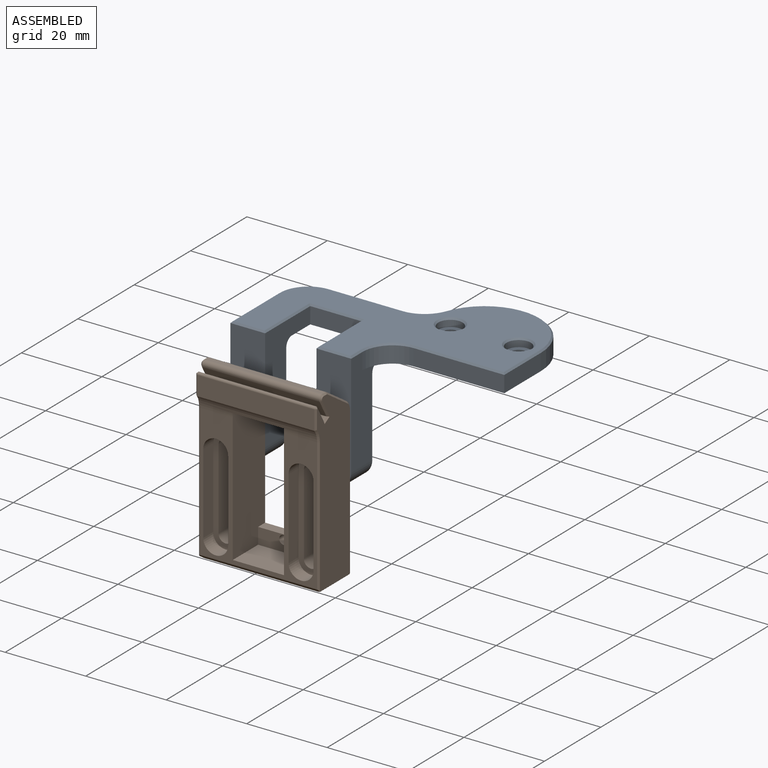
[diagram: assembled view]
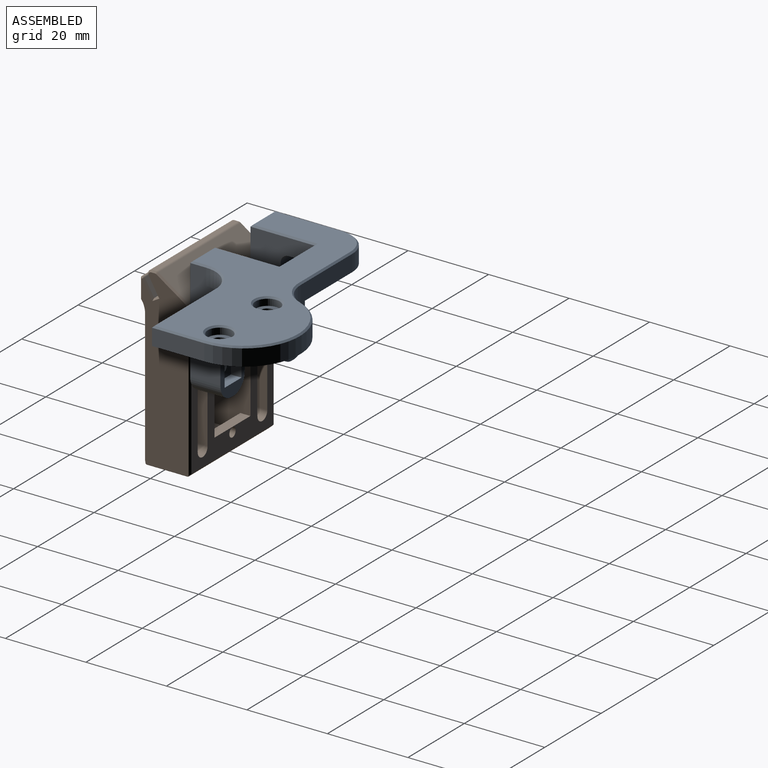
[diagram: assembled view, second angle]
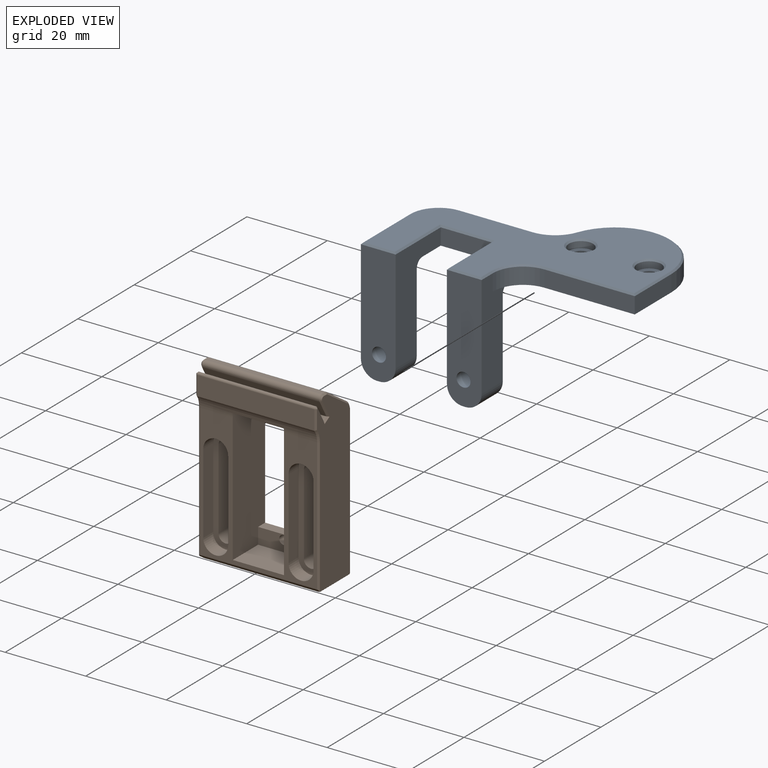
[diagram: exploded view]
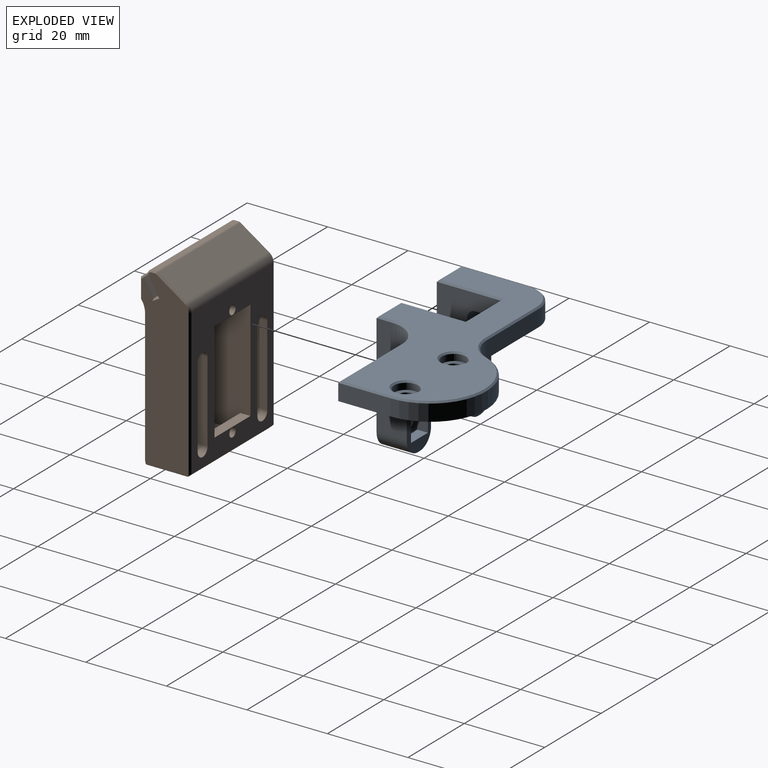
[diagram: exploded view, second angle]
ASSEMBLY  parts=2 mates=2
PART A: 60 faces, bbox 60x38.5x30 mm
  f0: plane 29.6x8.63mm, normal (0,-1,0), area 238.8mm2, adj f17,f19,f31,f33,f36,f37,f48
  f1: plane 7.5x0.63mm, normal (0,0,-1), area 4.7mm2, adj f4,f5,f35,f38
  f2: plane 23.5x8.63mm, normal (0,1,0), area 159.8mm2, adj f17,f19,f20,f21,f22,f23,f33,f36
  f3: plane 59.2x37.7mm, normal (0,0,1), area 1079.9mm2, adj f44,f45,f46,f47,f48,f49,f50,f51
  f4: plane 29.6x8.63mm, normal (0,-1,0), area 238.8mm2, adj f1,f18,f30,f32,f35,f38,f47
  f5: plane 23.5x8.63mm, normal (0,1,0), area 159.8mm2, adj f1,f18,f25,f26,f27,f28,f32,f35
  f6: plane 22.5x4.1mm, normal (0,-1,0), area 92.3mm2, adj f11,f13,f39,f53
  f7: cylinder r=1.75mm len=3.5mm, axis (0,0,1), area 27.5mm2, adj f11,f14
  f8: cylinder r=3mm len=6mm, axis (0,0,1), area 30.2mm2, adj f14,f59
  f9: cylinder r=1.75mm len=3.5mm, axis (0,0,-1), area 27.5mm2, adj f11,f12
  f10: cylinder r=14mm len=27.12mm, axis (0,0,1), area 159.9mm2, adj f11,f13,f41,f57
  f11: plane 60x34.5mm, normal (0,0,-1), area 1052.2mm2, adj f6,f7,f9,f10,f13,f16,f17,f18
  f12: plane 6x6mm, normal (0,0,1), area 18.7mm2, adj f9,f15
  f13: plane 13x4.1mm, normal (1,0,0), area 53.3mm2, adj f6,f10,f11,f55
  f14: plane 6x6mm, normal (0,0,1), area 18.7mm2, adj f7,f8
  f15: cylinder r=3mm len=6mm, axis (0,0,-1), area 30.2mm2, adj f12,f58
  f16: plane 18.35x4.1mm, normal (0,1,0), area 75.2mm2, adj f11,f40,f41,f54
  f17: plane 25.6x17mm, normal (-1,0,0), area 231.8mm2, adj f0,f2,f11,f37,f40,f42,f50
  f18: plane 25.6x9.5mm, normal (1,0,0), area 178.5mm2, adj f4,f5,f11,f38,f39,f43,f49
  f19: plane 7.5x0.63mm, normal (0,0,-1), area 4.7mm2, adj f0,f2,f36,f37
  f20: plane 6x2.65mm, normal (0,0,1), area 15.9mm2, adj f2,f21,f23,f24
  f21: plane 6x2.65mm, normal (1,0,0), area 15.9mm2, adj f2,f20,f22,f24
  f22: plane 6x2.65mm, normal (0,0,-1), area 15.9mm2, adj f2,f21,f23,f24
  f23: plane 6x2.65mm, normal (-1,0,0), area 15.9mm2, adj f2,f20,f22,f24
  f24: plane 6x6mm, normal (0,1,0), area 26.4mm2, adj f20,f21,f22,f23,f31
  f25: plane 6x2.65mm, normal (0,0,-1), area 15.9mm2, adj f5,f26,f28,f29
  f26: plane 6x2.65mm, normal (-1,0,0), area 15.9mm2, adj f5,f25,f27,f29
  f27: plane 6x2.65mm, normal (0,0,1), area 15.9mm2, adj f5,f26,f28,f29
  f28: plane 6x2.65mm, normal (1,0,0), area 15.9mm2, adj f5,f25,f27,f29
  f29: plane 6x6mm, normal (0,1,0), area 26.4mm2, adj f25,f26,f27,f28,f30
  f30: cylinder r=1.75mm len=4.85mm, axis (0,1,0), area 53.3mm2, adj f4,f29
  f31: cylinder r=1.75mm len=4.85mm, axis (0,1,0), area 53.3mm2, adj f0,f24
  f32: plane 25.6x16mm, normal (-1,0,0), area 227.7mm2, adj f4,f5,f11,f34,f35,f43,f45
  f33: plane 25.6x16mm, normal (1,0,0), area 227.7mm2, adj f0,f2,f11,f34,f36,f42,f46
  f34: plane 12.75x4.1mm, normal (0,-1,0), area 52.3mm2, adj f11,f32,f33,f44
  f35: cylinder r=4mm len=7.5mm, axis (0,-1,0), area 47.1mm2, adj f1,f4,f5,f32
  f36: cylinder r=4mm len=7.5mm, axis (0,1,0), area 47.1mm2, adj f0,f2,f19,f33
  f37: cylinder r=4mm len=7.5mm, axis (0,-1,0), area 47.1mm2, adj f0,f2,f17,f19
  f38: cylinder r=4mm len=7.5mm, axis (0,-1,0), area 47.1mm2, adj f1,f4,f5,f18
  f39: cylinder r=7.5mm len=7.5mm, axis (0,0,-1), area 48.3mm2, adj f6,f11,f18,f51
  f40: cylinder r=7.5mm len=7.5mm, axis (0,0,-1), area 48.3mm2, adj f11,f16,f17,f52
  f41: cylinder r=7.5mm len=7.03mm, axis (0,0,1), area 37.3mm2, adj f10,f11,f16,f56
  f42: cylinder r=2mm len=8.63mm, axis (1,0,0), area 27.1mm2, adj f2,f11,f17,f33
  f43: cylinder r=2mm len=8.63mm, axis (1,0,0), area 27.1mm2, adj f5,f11,f18,f32
  f44: plane 13.55x0.4mm, normal (0,-0.71,0.71), area 7.4mm2, adj f3,f34,f45,f46
  f45: plane 16.4x0.4mm, normal (-0.71,0,0.71), area 9.1mm2, adj f3,f32,f44,f47
  f46: plane 16.4x0.4mm, normal (0.71,0,0.71), area 9.1mm2, adj f3,f33,f44,f48
  f47: plane 8.63x0.4mm, normal (0,-0.71,0.71), area 4.7mm2, adj f3,f4,f45,f49
  f48: plane 8.63x0.4mm, normal (0,-0.71,0.71), area 4.7mm2, adj f0,f3,f46,f50
  f49: plane 4x0.4mm, normal (0.71,0,0.71), area 2.1mm2, adj f3,f18,f47,f51
  f50: plane 17x0.4mm, normal (-0.71,0,0.71), area 9.5mm2, adj f3,f17,f48,f52
  f51: cone r=7.9mm half-angle=45deg, axis (0,0,1), area 6.8mm2, adj f3,f39,f49,f53
  f52: cone r=7.1mm half-angle=45deg, axis (0,0,-1), area 6.5mm2, adj f3,f40,f50,f54
  f53: plane 22.5x0.4mm, normal (0,-0.71,0.71), area 12.6mm2, adj f3,f6,f51,f55
  f54: plane 18.35x0.4mm, normal (0,0.71,0.71), area 10.4mm2, adj f3,f16,f52,f56
  f55: plane 13x0.4mm, normal (0.71,0,0.71), area 7.2mm2, adj f3,f13,f53,f57
  f56: cone r=7.9mm half-angle=45deg, axis (0,0,1), area 5.3mm2, adj f3,f41,f54,f57
  f57: cone r=13.6mm half-angle=45deg, axis (0,0,-1), area 21.7mm2, adj f3,f10,f55,f56
  f58: cone r=3.4mm half-angle=45deg, axis (0,0,1), area 11.4mm2, adj f3,f15
  f59: cone r=3.4mm half-angle=45deg, axis (0,0,1), area 11.4mm2, adj f3,f8
PART B: 76 faces, bbox 12.5x30x44.2 mm
  f0: plane 33.03x29.2mm, normal (1,0,0), area 248.2mm2, adj f14,f15,f16,f17,f18,f19,f20,f21
  f1: plane 12.75x2.5mm, normal (0,0,1), area 31.9mm2, adj f3,f31,f32,f36
  f2: plane 12.75x2.5mm, normal (0,0,-1), area 31.9mm2, adj f3,f31,f32,f33
  f3: plane 36.3x29.2mm, normal (-1,0,0), area 573.9mm2, adj f1,f2,f23,f24,f25,f26,f27,f28
  f4: plane 26.2x6.2mm, normal (1,0,0), area 74.6mm2, adj f14,f15,f16,f17,f27,f28,f29,f30
  f5: plane 29.2x4.76mm, normal (1,0,0), area 139.1mm2, adj f40,f41,f52,f66
  f6: plane 29.2x4.01mm, normal (-0.87,0,0.5), area 135.3mm2, adj f7,f40,f48,f62
  f7: plane 29.2x1.04mm, normal (0.5,0,0.87), area 35mm2, adj f6,f8,f46,f60
  f8: plane 29.2x4.13mm, normal (0.87,0,-0.5), area 139.2mm2, adj f7,f38,f44,f58
  f9: plane 29.2x0.97mm, normal (0,0,1), area 28.2mm2, adj f38,f39,f43,f57
  f10: plane 29.2x7.09mm, normal (-0.55,0,0.83), area 248.8mm2, adj f37,f39,f47,f61
  f11: plane 43.43x11.7mm, normal (0,1,0), area 436.9mm2, adj f42,f43,f44,f45,f46,f47,f48,f49
  f12: plane 43.43x11.7mm, normal (0,-1,0), area 436.9mm2, adj f56,f57,f58,f59,f60,f61,f62,f63
  f13: plane 28.4x9.57mm, normal (0,0,-1), area 271.7mm2, adj f70,f71,f72,f73
  f14: cylinder r=3.1mm len=6.2mm, axis (1,0,0), area 34.1mm2, adj f0,f4,f15,f17
  f15: plane 20x3.5mm, normal (0,-1,0), area 70mm2, adj f0,f4,f14,f16
  f16: cylinder r=3.1mm len=6.2mm, axis (1,0,0), area 34.1mm2, adj f0,f4,f15,f17
  f17: plane 20x3.5mm, normal (0,1,0), area 70mm2, adj f0,f4,f14,f16
  f18: cylinder r=3.1mm len=6.2mm, axis (1,0,0), area 34.1mm2, adj f0,f19,f21,f22
  f19: plane 20x3.5mm, normal (0,-1,0), area 70mm2, adj f0,f18,f20,f22
  f20: cylinder r=3.1mm len=6.2mm, axis (1,0,0), area 34.1mm2, adj f0,f19,f21,f22
  f21: plane 20x3.5mm, normal (0,1,0), area 70mm2, adj f0,f18,f20,f22
  f22: plane 26.2x6.2mm, normal (1,0,0), area 74.6mm2, adj f18,f19,f20,f21,f23,f24,f25,f26
  f23: cylinder r=1.75mm len=8mm, axis (1,0,0), area 44mm2, adj f3,f22,f24,f26
  f24: plane 20x8mm, normal (0,-1,0), area 160mm2, adj f3,f22,f23,f25
  f25: cylinder r=1.75mm len=8mm, axis (1,0,0), area 44mm2, adj f3,f22,f24,f26
  f26: plane 20x8mm, normal (0,1,0), area 160mm2, adj f3,f22,f23,f25
  f27: plane 20x8mm, normal (0,-1,0), area 160mm2, adj f3,f4,f28,f29
  f28: cylinder r=1.75mm len=8mm, axis (1,0,0), area 44mm2, adj f3,f4,f27,f30
  f29: cylinder r=1.75mm len=8mm, axis (1,0,0), area 44mm2, adj f3,f4,f27,f30
  f30: plane 20x8mm, normal (0,1,0), area 160mm2, adj f3,f4,f28,f29
  f31: plane 33x11.6mm, normal (0,-1,0), area 359.5mm2, adj f0,f1,f2,f3,f33,f34,f35,f36
  f32: plane 33x11.6mm, normal (0,1,0), area 359.5mm2, adj f0,f1,f2,f3,f33,f34,f35,f36
  f33: plane 12.75x4mm, normal (1,0,0), area 47mm2, adj f2,f31,f32,f34,f74
  f34: plane 12.75x9.1mm, normal (0,0,-1), area 116mm2, adj f31,f32,f33,f41
  f35: plane 12.75x9mm, normal (0,0,1), area 114.7mm2, adj f0,f31,f32,f36
  f36: plane 12.75x4mm, normal (1,0,0), area 47mm2, adj f1,f31,f32,f35,f75
  f37: cylinder r=2.5mm len=29.2mm, axis (0,-1,0), area 71.8mm2, adj f3,f10,f49,f63
  f38: cylinder r=1mm len=29.2mm, axis (0,-1,0), area 61.2mm2, adj f8,f9,f42,f56
  f39: cylinder r=1mm len=29.2mm, axis (0,-1,0), area 17.1mm2, adj f9,f10,f45,f59
  f40: cylinder r=0.5mm len=29.2mm, axis (0,-1,0), area 38.2mm2, adj f5,f6,f50,f64
  f41: cylinder r=5mm len=29.2mm, axis (0,-1,0), area 81.1mm2, adj f0,f5,f31,f32,f34,f54,f68
  f42: cone r=0.6mm half-angle=45deg, axis (0,-1,0), area 0.9mm2, adj f11,f38,f43,f44
  f43: plane 0.97x0.4mm, normal (0,0.71,0.71), area 0.5mm2, adj f9,f11,f42,f45
  f44: plane 4.48x2.93mm, normal (0.61,0.71,-0.35), area 2.8mm2, adj f8,f11,f42,f46
  f45: cone r=0.6mm half-angle=45deg, axis (0,-1,0), area 0.3mm2, adj f11,f39,f43,f47
  f46: plane 1.73x1.15mm, normal (0.35,0.71,0.61), area 0.9mm2, adj f7,f11,f44,f48
  f47: plane 7.32x5.05mm, normal (-0.39,0.71,0.59), area 4.8mm2, adj f10,f11,f45,f49
  f48: plane 4.56x2.66mm, normal (-0.61,0.71,0.35), area 2.7mm2, adj f6,f11,f46,f50
  f49: cone r=2.1mm half-angle=45deg, axis (0,-1,0), area 1.3mm2, adj f11,f37,f47,f51
  f50: cone r=0.1mm half-angle=45deg, axis (0,-1,0), area 0.4mm2, adj f11,f40,f48,f52
  f51: plane 36.7x0.4mm, normal (-0.71,0.71,0), area 20.6mm2, adj f3,f11,f49,f70
  f52: plane 4.77x0.4mm, normal (0.71,0.71,0), area 2.7mm2, adj f5,f11,f50,f54
  f53: plane 10.37x0.12mm, normal (0,0.71,-0.71), area 1.7mm2, adj f11,f70,f71,f73
  f54: cone r=5.4mm half-angle=45deg, axis (0,1,0), area 1.9mm2, adj f11,f41,f52,f55
  f55: plane 33.43x0.4mm, normal (0.71,0.71,0), area 18.8mm2, adj f0,f11,f54,f73
  f56: cone r=0.6mm half-angle=45deg, axis (0,1,0), area 0.9mm2, adj f12,f38,f57,f58
  f57: plane 0.97x0.4mm, normal (0,-0.71,0.71), area 0.5mm2, adj f9,f12,f56,f59
  f58: plane 4.48x2.93mm, normal (0.61,-0.71,-0.35), area 2.8mm2, adj f8,f12,f56,f60
  f59: cone r=0.6mm half-angle=45deg, axis (0,1,0), area 0.3mm2, adj f12,f39,f57,f61
  f60: plane 1.73x1.15mm, normal (0.35,-0.71,0.61), area 0.9mm2, adj f7,f12,f58,f62
  f61: plane 7.32x5.05mm, normal (-0.39,-0.71,0.59), area 4.8mm2, adj f10,f12,f59,f63
  f62: plane 4.56x2.66mm, normal (-0.61,-0.71,0.35), area 2.7mm2, adj f6,f12,f60,f64
  f63: cone r=2.1mm half-angle=45deg, axis (0,1,0), area 1.3mm2, adj f12,f37,f61,f65
  f64: cone r=0.1mm half-angle=45deg, axis (0,1,0), area 0.4mm2, adj f12,f40,f62,f66
  f65: plane 36.7x0.4mm, normal (-0.71,-0.71,0), area 20.6mm2, adj f3,f12,f63,f70
  f66: plane 4.77x0.4mm, normal (0.71,-0.71,0), area 2.7mm2, adj f5,f12,f64,f68
  f67: plane 10.37x0.12mm, normal (0,-0.71,-0.71), area 1.7mm2, adj f12,f70,f72,f73
  f68: cone r=5.4mm half-angle=45deg, axis (0,-1,0), area 1.9mm2, adj f12,f41,f66,f69
  f69: plane 33.43x0.4mm, normal (0.71,-0.71,0), area 18.8mm2, adj f0,f12,f68,f73
  f70: plane 30x0.97mm, normal (-0.71,0,-0.71), area 40.4mm2, adj f3,f11,f12,f13,f51,f53,f65,f67
  f71: plane 10.13x0.68mm, normal (0,0.38,-0.92), area 7.3mm2, adj f13,f53,f70,f73
  f72: plane 10.13x0.68mm, normal (0,-0.38,-0.92), area 7.3mm2, adj f13,f67,f70,f73
  f73: plane 30x0.97mm, normal (0.71,0,-0.71), area 40.4mm2, adj f0,f11,f12,f13,f53,f55,f67,f69
  f74: cylinder r=1.12mm len=2.5mm, axis (1,0,0), area 17.7mm2, adj f3,f33
  f75: cylinder r=1.12mm len=2.5mm, axis (1,0,0), area 17.7mm2, adj f3,f36
PLACE A at identity fixed
PLACE B rot(axis=(0,0,-1),90deg) t=(-17,-11.5,-7.41)mm
MATE planar A.f17 <-> B.f12  axis (-1,0,0) through (-32,-6.31,-6.86)mm
MATE planar A.f0 <-> B.f3  axis (0,-1,0) through (-27.7,-11.5,-9.95)mm
